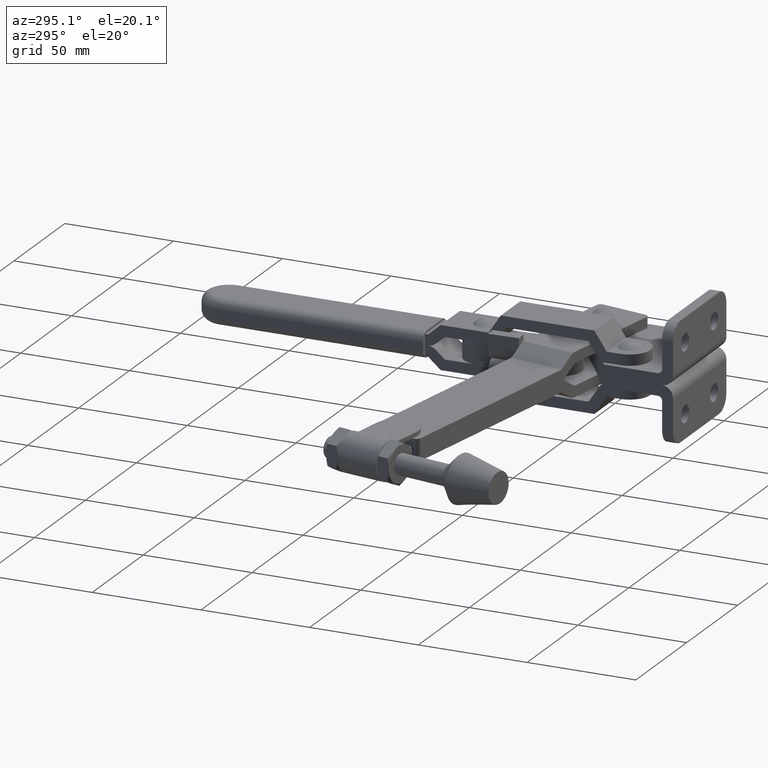
[diagram: clean part render]
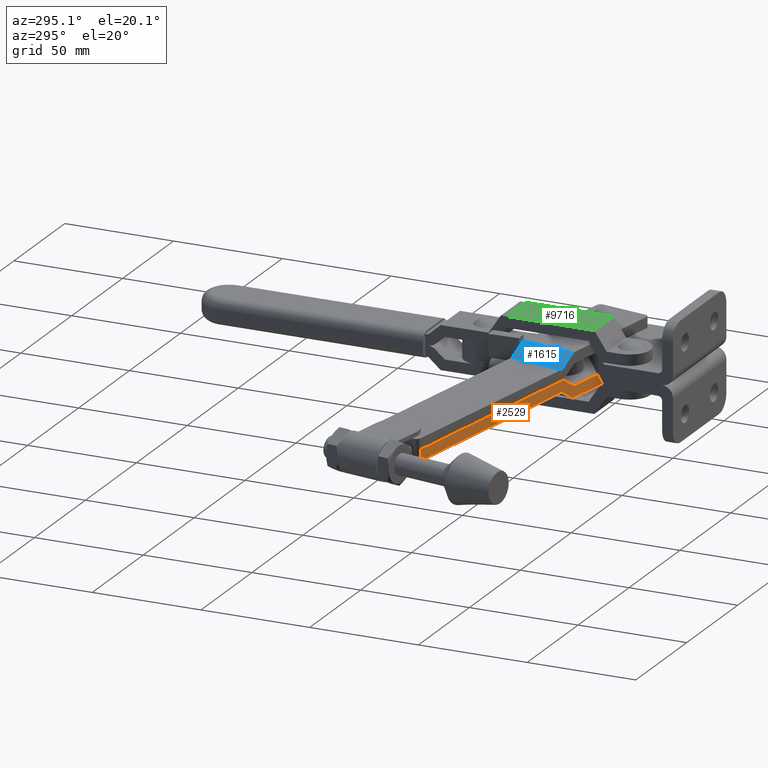
[diagram: same view with three faces highlighted in distinct colors, each labeled with its STEP entity id]
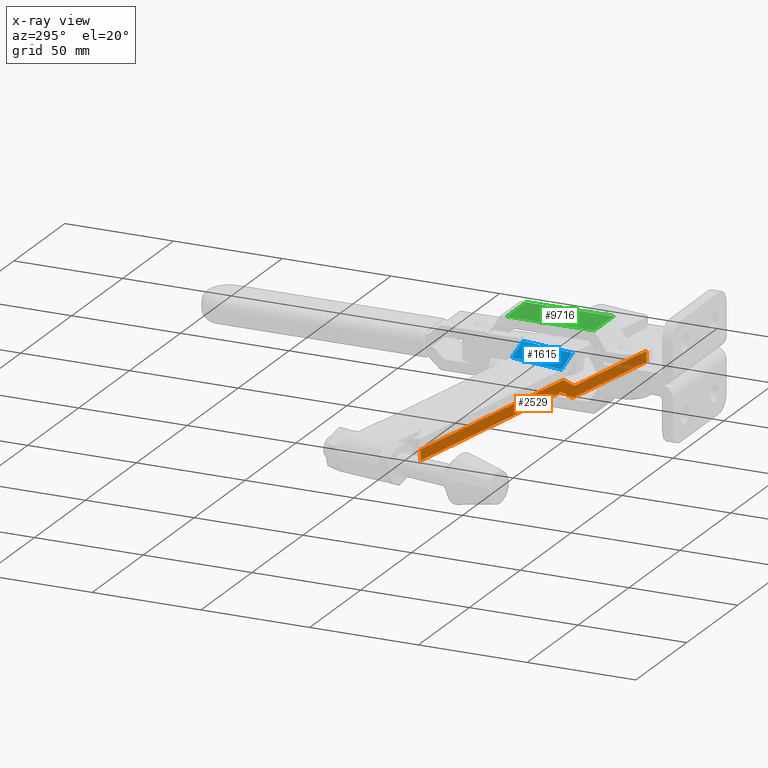
[diagram: x-ray of the same camera — body ghosted, the three highlighted faces saturated]
A machine part, auxiliary view with three faces highlighted in distinct colors.
The next image is the same camera in x-ray (body ghosted, the three faces saturated) — at least one of them is partly hidden behind the body in this view.
Their STEP definitions:

[orange] entity #2529 — the highlighted planar face has unit normal (0.1757, 0.9844, 0).
#30 = ORIENTED_EDGE ( 'NONE', *, *, #317, .F. ) ;
#263 = LINE ( 'NONE', #2919, #4392 ) ;
#317 = EDGE_CURVE ( 'NONE', #6006, #9222, #7455, .T. ) ;
#468 = ORIENTED_EDGE ( 'NONE', *, *, #1162, .F. ) ;
#586 = LINE ( 'NONE', #939, #2784 ) ;
#939 = CARTESIAN_POINT ( 'NONE',  ( -3.869889554727806500, 43.45812713401044600, -5.000069313091679600 ) ) ;
#1006 = EDGE_CURVE ( 'NONE', #4842, #2142, #1066, .T. ) ;
#1066 = LINE ( 'NONE', #6132, #7429 ) ;
#1162 = EDGE_CURVE ( 'NONE', #10675, #8804, #9200, .T. ) ;
#1202 = ORIENTED_EDGE ( 'NONE', *, *, #1006, .F. ) ;
#1253 = DIRECTION ( 'NONE',  ( -0.9844461011701318700, 0.1756868631711725500, -3.066692339880125200E-015 ) ) ;
#1431 = DIRECTION ( 'NONE',  ( -0.9844461011701318700, 0.1756868631711725500, -1.094915948100042400E-014 ) ) ;
#1700 = ORIENTED_EDGE ( 'NONE', *, *, #6151, .F. ) ;
#1952 = VECTOR ( 'NONE', #1253, 1000.000000000000100 ) ;
#1996 = FACE_OUTER_BOUND ( 'NONE', #9096, .T. ) ;
#2024 = DIRECTION ( 'NONE',  ( 0.9844461011701318700, -0.1756868631711725500, 3.066692339880125600E-015 ) ) ;
#2142 = VERTEX_POINT ( 'NONE', #7049 ) ;
#2482 = CARTESIAN_POINT ( 'NONE',  ( -33.00672260610759400, 48.65796366691414200, -4.999999979882975900E-005 ) ) ;
#2529 = ADVANCED_FACE ( 'NONE', ( #1996 ), #10234, .F. ) ;
#2608 = VECTOR ( 'NONE', #4850, 1000.000000000000100 ) ;
#2724 = EDGE_CURVE ( 'NONE', #8718, #10675, #586, .T. ) ;
#2784 = VECTOR ( 'NONE', #10014, 1000.000000000000000 ) ;
#2919 = CARTESIAN_POINT ( 'NONE',  ( 47.32121048593616300, 34.32242759928126900, 7.333008950119979600 ) ) ;
#3071 = VERTEX_POINT ( 'NONE', #3605 ) ;
#3175 = DIRECTION ( 'NONE',  ( 0.1756868631711725700, 0.9844461011701319800, 9.860761315262649800E-032 ) ) ;
#3345 = CARTESIAN_POINT ( 'NONE',  ( 47.32121048593622700, 34.32242759928125500, -9.999999999999410200 ) ) ;
#3553 = CARTESIAN_POINT ( 'NONE',  ( -11.74548878463740900, 44.86362746781821200, -4.999999973433265200E-005 ) ) ;
#3605 = CARTESIAN_POINT ( 'NONE',  ( -13.15850796626352800, 45.11579862052151000, -4.999999999999860600 ) ) ;
#4022 = VECTOR ( 'NONE', #7534, 1000.000000000000100 ) ;
#4163 = LINE ( 'NONE', #2482, #1952 ) ;
#4293 = LINE ( 'NONE', #6710, #4022 ) ;
#4304 = EDGE_CURVE ( 'NONE', #8718, #9222, #4163, .T. ) ;
#4392 = VECTOR ( 'NONE', #10238, 1000.000000000000000 ) ;
#4476 = ORIENTED_EDGE ( 'NONE', *, *, #4304, .T. ) ;
#4691 = ORIENTED_EDGE ( 'NONE', *, *, #5441, .F. ) ;
#4739 = LINE ( 'NONE', #7252, #6972 ) ;
#4842 = VERTEX_POINT ( 'NONE', #3345 ) ;
#4850 = DIRECTION ( 'NONE',  ( 0.9844461011701318700, -0.1756868631711725500, 3.403999682424953400E-015 ) ) ;
#5014 = CARTESIAN_POINT ( 'NONE',  ( -3.869846907851096000, 43.45811952313567900, -5.000000000000121700 ) ) ;
#5252 = VECTOR ( 'NONE', #5417, 1000.000000000000000 ) ;
#5417 = DIRECTION ( 'NONE',  ( 0.0000000000000000000, 0.0000000000000000000, 1.000000000000000000 ) ) ;
#5441 = EDGE_CURVE ( 'NONE', #2142, #3071, #4293, .T. ) ;
#5783 = CARTESIAN_POINT ( 'NONE',  ( -33.00672260610756600, 48.65796366691413500, -9.999999999999946700 ) ) ;
#5820 = ORIENTED_EDGE ( 'NONE', *, *, #7960, .F. ) ;
#5828 = ORIENTED_EDGE ( 'NONE', *, *, #2724, .F. ) ;
#6006 = VERTEX_POINT ( 'NONE', #7726 ) ;
#6099 = DIRECTION ( 'NONE',  ( -0.9844461011701318700, 0.1756868631711725500, 2.507594100653360500E-018 ) ) ;
#6132 = CARTESIAN_POINT ( 'NONE',  ( -33.00672260610756600, 48.65796366691413500, -9.999999999999946700 ) ) ;
#6151 = EDGE_CURVE ( 'NONE', #8804, #4842, #263, .T. ) ;
#6580 = CARTESIAN_POINT ( 'NONE',  ( -113.3449779121908800, 62.99534186425166400, -9.999999999999946700 ) ) ;
#6710 = CARTESIAN_POINT ( 'NONE',  ( -13.15839879001287600, 45.11577913663813900, -5.000069313247758300 ) ) ;
#6972 = VECTOR ( 'NONE', #1431, 1000.000000000000100 ) ;
#7049 = CARTESIAN_POINT ( 'NONE',  ( -5.282939156756066600, 43.71030371512599500, -9.999999999999946700 ) ) ;
#7252 = CARTESIAN_POINT ( 'NONE',  ( -115.3091455582557800, 63.34587243374580400, -5.000000000000996500 ) ) ;
#7335 = AXIS2_PLACEMENT_3D ( 'NONE', #5783, #3175, #2024 ) ;
#7429 = VECTOR ( 'NONE', #6099, 1000.000000000000200 ) ;
#7455 = LINE ( 'NONE', #6580, #5252 ) ;
#7534 = DIRECTION ( 'NONE',  ( -0.8348086241810484000, 0.1489821620059055600, 0.5299989399961014800 ) ) ;
#7726 = CARTESIAN_POINT ( 'NONE',  ( -113.3449779121908800, 62.99534186425166400, -5.000000000000959200 ) ) ;
#7960 = EDGE_CURVE ( 'NONE', #3071, #6006, #4739, .T. ) ;
#8013 = CARTESIAN_POINT ( 'NONE',  ( -3.869998730732210600, 43.45814661784986300, -5.000000000000121700 ) ) ;
#8718 = VERTEX_POINT ( 'NONE', #3553 ) ;
#8804 = VERTEX_POINT ( 'NONE', #9425 ) ;
#9096 = EDGE_LOOP ( 'NONE', ( #5828, #4476, #30, #5820, #4691, #1202, #1700, #468 ) ) ;
#9200 = LINE ( 'NONE', #5014, #2608 ) ;
#9222 = VERTEX_POINT ( 'NONE', #9992 ) ;
#9425 = CARTESIAN_POINT ( 'NONE',  ( 47.32121048593619900, 34.32242759928126200, -4.999999999999944000 ) ) ;
#9992 = CARTESIAN_POINT ( 'NONE',  ( -113.3449783766503600, 62.99533928684006400, -5.000000004909507600E-005 ) ) ;
#10014 = DIRECTION ( 'NONE',  ( 0.8348086241810487300, -0.1489821620059055800, -0.5299989399961010400 ) ) ;
#10234 = PLANE ( 'NONE',  #7335 ) ;
#10238 = DIRECTION ( 'NONE',  ( 3.542692401024471900E-015, -6.322604813689051600E-016, -1.000000000000000000 ) ) ;
#10675 = VERTEX_POINT ( 'NONE', #8013 ) ;

[blue] entity #1615 — the highlighted planar face has unit normal (0.5218, -0.0931, -0.848).
#185 = EDGE_CURVE ( 'NONE', #9372, #10009, #9239, .T. ) ;
#397 = ORIENTED_EDGE ( 'NONE', *, *, #5439, .F. ) ;
#648 = DIRECTION ( 'NONE',  ( 0.8348086241810420700, -0.1489821620059043900, 0.5299989399961118100 ) ) ;
#887 = DIRECTION ( 'NONE',  ( 0.8348077195594643100, -0.1489872308604923700, 0.5299989400031374100 ) ) ;
#1615 = ADVANCED_FACE ( 'NONE', ( #6350 ), #7629, .F. ) ;
#1628 = LINE ( 'NONE', #4389, #3589 ) ;
#1958 = LINE ( 'NONE', #10462, #10203 ) ;
#2087 = VECTOR ( 'NONE', #887, 999.9999999999998900 ) ;
#2155 = CARTESIAN_POINT ( 'NONE',  ( -5.282939156756663500, 43.71030371512610200, 10.00000000000017200 ) ) ;
#2371 = VERTEX_POINT ( 'NONE', #6341 ) ;
#3069 = DIRECTION ( 'NONE',  ( -0.1756928406069002400, -0.9844450344023673000, 1.751623080406021100E-046 ) ) ;
#3589 = VECTOR ( 'NONE', #8523, 1000.000000000000100 ) ;
#3714 = ORIENTED_EDGE ( 'NONE', *, *, #185, .F. ) ;
#3970 = CARTESIAN_POINT ( 'NONE',  ( -0.8204590622761937000, 68.71454609037384400, 10.00000000000017200 ) ) ;
#4389 = CARTESIAN_POINT ( 'NONE',  ( -8.696019337495752000, 70.12008881522915300, 5.000000000000334800 ) ) ;
#4789 = AXIS2_PLACEMENT_3D ( 'NONE', #6082, #7664, #7804 ) ;
#5278 = EDGE_CURVE ( 'NONE', #2371, #10009, #1958, .T. ) ;
#5439 = EDGE_CURVE ( 'NONE', #6737, #9372, #6499, .T. ) ;
#6082 = CARTESIAN_POINT ( 'NONE',  ( -8.696019337495752000, 70.12008881522915300, 5.000000000000334800 ) ) ;
#6341 = CARTESIAN_POINT ( 'NONE',  ( -13.15850796626351400, 45.11579862052151000, 5.000000000000330400 ) ) ;
#6350 = FACE_OUTER_BOUND ( 'NONE', #7009, .T. ) ;
#6499 = LINE ( 'NONE', #7506, #2087 ) ;
#6737 = VERTEX_POINT ( 'NONE', #7850 ) ;
#7009 = EDGE_LOOP ( 'NONE', ( #8711, #8259, #3714, #397 ) ) ;
#7065 = VECTOR ( 'NONE', #3069, 1000.000000000000100 ) ;
#7506 = CARTESIAN_POINT ( 'NONE',  ( -8.696019337495752000, 70.12008881522915300, 5.000000000000334800 ) ) ;
#7629 = PLANE ( 'NONE',  #4789 ) ;
#7664 = DIRECTION ( 'NONE',  ( 0.5217548247246068800, -0.09311701928779732300, -0.8479983040051146700 ) ) ;
#7804 = DIRECTION ( 'NONE',  ( -0.8348077195594642000, 0.1489872308604923400, -0.5299989400031374100 ) ) ;
#7850 = CARTESIAN_POINT ( 'NONE',  ( -8.696019337495752000, 70.12008881522915300, 5.000000000000334800 ) ) ;
#7853 = CARTESIAN_POINT ( 'NONE',  ( -0.8204590622761937000, 68.71454609037384400, 10.00000000000017200 ) ) ;
#8259 = ORIENTED_EDGE ( 'NONE', *, *, #5278, .T. ) ;
#8523 = DIRECTION ( 'NONE',  ( -0.1756928406069002400, -0.9844450344023673000, 1.751623080406021100E-046 ) ) ;
#8711 = ORIENTED_EDGE ( 'NONE', *, *, #8731, .T. ) ;
#8731 = EDGE_CURVE ( 'NONE', #6737, #2371, #1628, .T. ) ;
#9239 = LINE ( 'NONE', #3970, #7065 ) ;
#9372 = VERTEX_POINT ( 'NONE', #7853 ) ;
#10009 = VERTEX_POINT ( 'NONE', #2155 ) ;
#10203 = VECTOR ( 'NONE', #648, 1000.000000000000200 ) ;
#10462 = CARTESIAN_POINT ( 'NONE',  ( -13.15839879001286200, 45.11577913663813900, 5.000069313248233400 ) ) ;

[green] entity #9716 — the highlighted planar face has unit normal (-0, 0, -1).
#75 = DIRECTION ( 'NONE',  ( -0.001009570566938927700, 0.9999994903835053300, 8.419849909903890500E-015 ) ) ;
#453 = EDGE_CURVE ( 'NONE', #6178, #8582, #1979, .T. ) ;
#627 = CARTESIAN_POINT ( 'NONE',  ( 2.188067642017266700, 37.21390437646171300, 18.49999999449435600 ) ) ;
#847 = ORIENTED_EDGE ( 'NONE', *, *, #4525, .T. ) ;
#1297 = DIRECTION ( 'NONE',  ( -0.9999994903835053300, -0.001009570566938927700, -8.281207575825483200E-018 ) ) ;
#1314 = ORIENTED_EDGE ( 'NONE', *, *, #9832, .F. ) ;
#1323 = LINE ( 'NONE', #5967, #3283 ) ;
#1758 = CARTESIAN_POINT ( 'NONE',  ( 2.185315048792840100, 39.94040206945290100, 18.49999999449436000 ) ) ;
#1979 = LINE ( 'NONE', #2946, #10468 ) ;
#2522 = PLANE ( 'NONE',  #4928 ) ;
#2946 = CARTESIAN_POINT ( 'NONE',  ( 21.14742627840787700, 77.47956478942377600, 18.49999999449467200 ) ) ;
#3037 = DIRECTION ( 'NONE',  ( 0.001009570566938927700, -0.9999994903835053300, -8.419849909903890500E-015 ) ) ;
#3283 = VECTOR ( 'NONE', #6892, 1000.000000000000000 ) ;
#3900 = LINE ( 'NONE', #6723, #10439 ) ;
#4336 = EDGE_CURVE ( 'NONE', #10232, #8402, #3900, .T. ) ;
#4525 = EDGE_CURVE ( 'NONE', #8582, #10232, #8350, .T. ) ;
#4731 = ORIENTED_EDGE ( 'NONE', *, *, #453, .T. ) ;
#4928 = AXIS2_PLACEMENT_3D ( 'NONE', #8330, #5028, #75 ) ;
#5028 = DIRECTION ( 'NONE',  ( -2.192292915057049900E-019, 8.419853979472920800E-015, -1.000000000000000000 ) ) ;
#5121 = EDGE_LOOP ( 'NONE', ( #847, #5602, #1314, #4731 ) ) ;
#5434 = CARTESIAN_POINT ( 'NONE',  ( 21.14742627840789500, 77.47956478942379000, 18.50000020153364800 ) ) ;
#5602 = ORIENTED_EDGE ( 'NONE', *, *, #4336, .T. ) ;
#5967 = CARTESIAN_POINT ( 'NONE',  ( 21.18530536607944700, 39.95958391022477900, 18.49999999449435600 ) ) ;
#6178 = VERTEX_POINT ( 'NONE', #5434 ) ;
#6546 = CARTESIAN_POINT ( 'NONE',  ( 2.147435961121278300, 77.46038294865192600, 18.49999999449467900 ) ) ;
#6723 = CARTESIAN_POINT ( 'NONE',  ( -2.626243207551785200, 37.20904398745096100, 18.49999999449435600 ) ) ;
#6892 = DIRECTION ( 'NONE',  ( 0.001009570566938927700, -0.9999994903835053300, -8.419849909903890500E-015 ) ) ;
#8330 = CARTESIAN_POINT ( 'NONE',  ( 21.18530536607944700, 39.95958391022477900, 18.49999999449435600 ) ) ;
#8350 = LINE ( 'NONE', #1758, #9974 ) ;
#8402 = VERTEX_POINT ( 'NONE', #8689 ) ;
#8582 = VERTEX_POINT ( 'NONE', #6546 ) ;
#8689 = CARTESIAN_POINT ( 'NONE',  ( 21.18805795930390100, 37.23308621723354900, 18.49999999449435600 ) ) ;
#9460 = FACE_OUTER_BOUND ( 'NONE', #5121, .T. ) ;
#9716 = ADVANCED_FACE ( 'NONE', ( #9460 ), #2522, .F. ) ;
#9832 = EDGE_CURVE ( 'NONE', #6178, #8402, #1323, .T. ) ;
#9974 = VECTOR ( 'NONE', #3037, 1000.000000000000000 ) ;
#10047 = DIRECTION ( 'NONE',  ( 0.9999994903835053300, 0.001009570566938927900, 8.281207575825483200E-018 ) ) ;
#10232 = VERTEX_POINT ( 'NONE', #627 ) ;
#10439 = VECTOR ( 'NONE', #10047, 1000.000000000000000 ) ;
#10468 = VECTOR ( 'NONE', #1297, 1000.000000000000000 ) ;